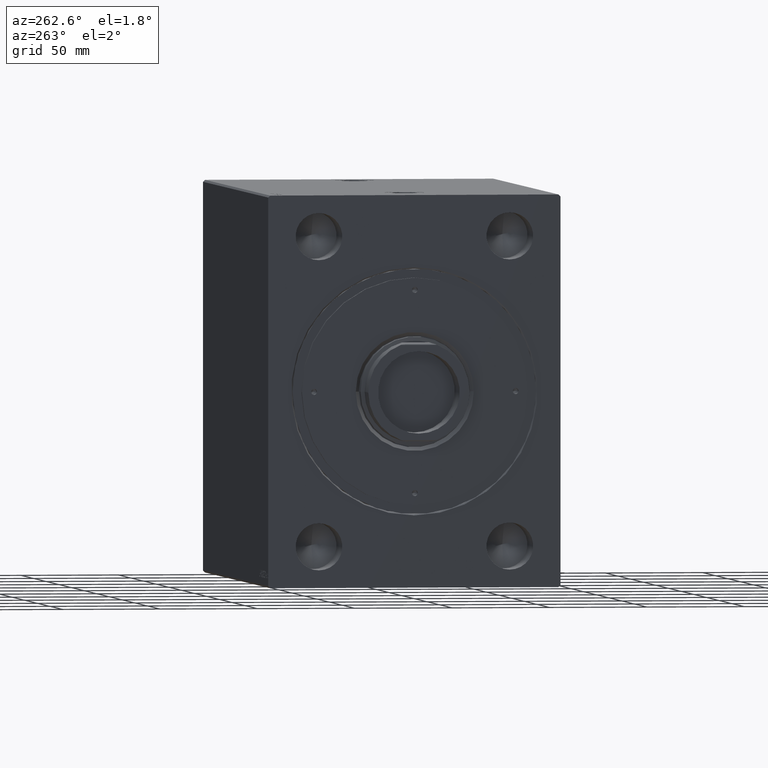
[diagram: clean part render]
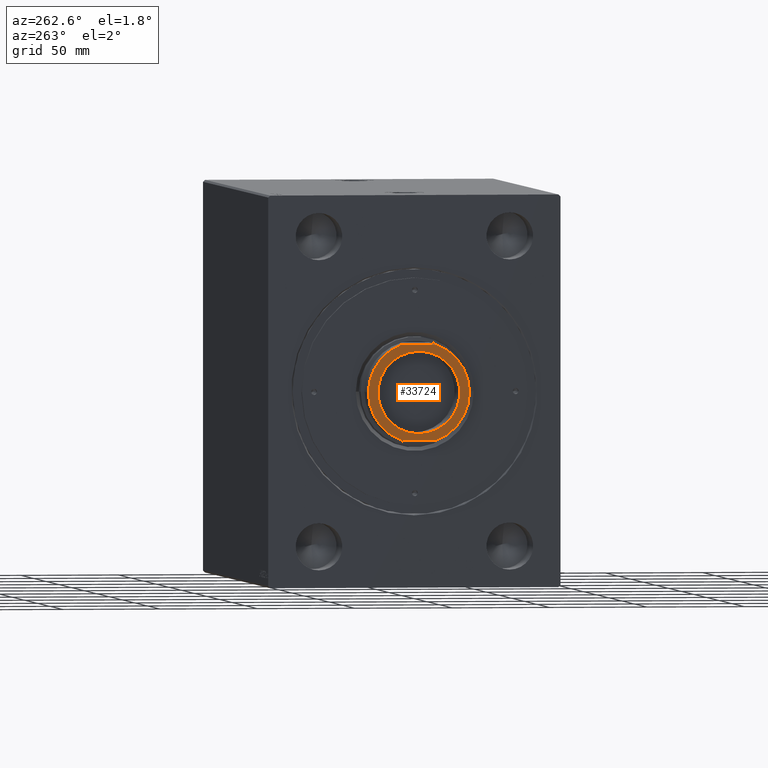
[diagram: same view with one face highlighted and labeled with its STEP entity id]
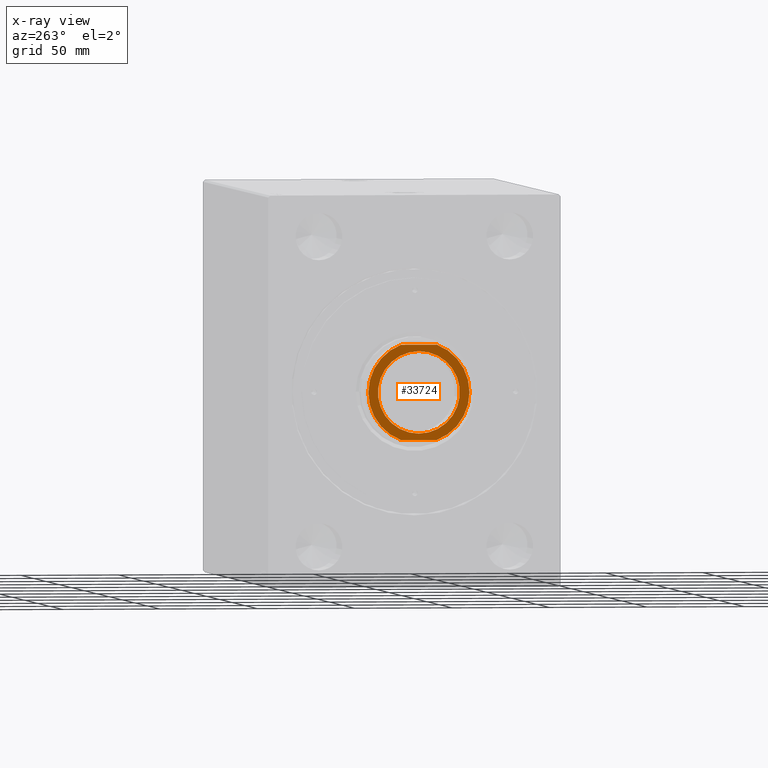
[diagram: x-ray of the same camera — body ghosted, the highlighted face saturated]
A machine part, auxiliary view. The second image highlights one B-rep face of the part: STEP entity #33724.
The next image is the same camera in x-ray: the body ghosted, the highlighted face saturated — about 0% of this face is hidden behind the body in this view.
In plain terms, the highlighted planar face has unit normal (1, -0, -0).
Its self-contained STEP definition (entity closure, byte-faithful):
#2585 = CARTESIAN_POINT ( 'NONE',  ( 24.29000000000001336, -9.160649540289131920, 173.0000000000000000 ) ) ;
#2684 = CIRCLE ( 'NONE', #17719, 25.95999999999999375 ) ;
#3596 = DIRECTION ( 'NONE',  ( 0.000000000000000000, 0.000000000000000000, 1.000000000000000000 ) ) ;
#5474 = DIRECTION ( 'NONE',  ( 0.000000000000000000, 1.655022508399474550E-16, -1.000000000000000000 ) ) ;
#5614 = CIRCLE ( 'NONE', #32165, 25.95999999999999375 ) ;
#5632 = DIRECTION ( 'NONE',  ( 0.000000000000000000, 0.000000000000000000, 1.000000000000000000 ) ) ;
#6082 = CARTESIAN_POINT ( 'NONE',  ( 0.000000000000000000, -2.863188939531091061E-14, 173.0000000000000000 ) ) ;
#6926 = ORIENTED_EDGE ( 'NONE', *, *, #20827, .F. ) ;
#7107 = VERTEX_POINT ( 'NONE', #8261 ) ;
#7177 = DIRECTION ( 'NONE',  ( 0.000000000000000000, 1.000000000000000000, 1.655022508399474550E-16 ) ) ;
#7779 = VERTEX_POINT ( 'NONE', #17161 ) ;
#7846 = CARTESIAN_POINT ( 'NONE',  ( -24.29000000000001336, 9.160649540289073300, 173.0000000000000000 ) ) ;
#8261 = CARTESIAN_POINT ( 'NONE',  ( -21.00000000000000000, -2.606013111710146619E-14, 173.0000000000000000 ) ) ;
#8517 = CARTESIAN_POINT ( 'NONE',  ( 0.000000000000000000, -2.863188939531091061E-14, 173.0000000000000000 ) ) ;
#8729 = DIRECTION ( 'NONE',  ( -0.000000000000000000, -1.655022508399474550E-16, 1.000000000000000000 ) ) ;
#9003 = EDGE_CURVE ( 'NONE', #36217, #25392, #2684, .T. ) ;
#9646 = AXIS2_PLACEMENT_3D ( 'NONE', #27628, #3596, #17071 ) ;
#10375 = EDGE_CURVE ( 'NONE', #21856, #28275, #24497, .T. ) ;
#12203 = FACE_BOUND ( 'NONE', #24003, .T. ) ;
#12397 = CARTESIAN_POINT ( 'NONE',  ( -24.29000000000001336, -9.160649540289131920, 173.0000000000000000 ) ) ;
#12689 = ORIENTED_EDGE ( 'NONE', *, *, #20910, .T. ) ;
#13248 = AXIS2_PLACEMENT_3D ( 'NONE', #8517, #8729, #39744 ) ;
#13468 = AXIS2_PLACEMENT_3D ( 'NONE', #6082, #5632, #19335 ) ;
#14113 = EDGE_LOOP ( 'NONE', ( #38833, #36208, #12689, #29900, #18481 ) ) ;
#15696 = VECTOR ( 'NONE', #38203, 1000.000000000000000 ) ;
#16770 = CARTESIAN_POINT ( 'NONE',  ( 21.00000000000000000, -2.863188939531091061E-14, 173.0000000000000000 ) ) ;
#16872 = CARTESIAN_POINT ( 'NONE',  ( -24.29000000000001336, 25.95999999999996533, 173.0000000000000000 ) ) ;
#17071 = DIRECTION ( 'NONE',  ( 1.000000000000000000, 0.000000000000000000, 0.000000000000000000 ) ) ;
#17161 = CARTESIAN_POINT ( 'NONE',  ( 24.29000000000001336, 9.160649540289073300, 173.0000000000000000 ) ) ;
#17719 = AXIS2_PLACEMENT_3D ( 'NONE', #22255, #42926, #43376 ) ;
#18481 = ORIENTED_EDGE ( 'NONE', *, *, #10375, .T. ) ;
#19335 = DIRECTION ( 'NONE',  ( 1.000000000000000000, 0.000000000000000000, 0.000000000000000000 ) ) ;
#19759 = DIRECTION ( 'NONE',  ( -0.000000000000000000, -1.655022508399474550E-16, 1.000000000000000000 ) ) ;
#20827 = EDGE_CURVE ( 'NONE', #7107, #26960, #32867, .T. ) ;
#20910 = EDGE_CURVE ( 'NONE', #25392, #7779, #24253, .T. ) ;
#21396 = VECTOR ( 'NONE', #7177, 1000.000000000000000 ) ;
#21856 = VERTEX_POINT ( 'NONE', #7846 ) ;
#22255 = CARTESIAN_POINT ( 'NONE',  ( 0.000000000000000000, -2.863188939531091061E-14, 173.0000000000000000 ) ) ;
#22545 = PLANE ( 'NONE',  #29750 ) ;
#24003 = EDGE_LOOP ( 'NONE', ( #42300, #6926 ) ) ;
#24253 = LINE ( 'NONE', #41335, #21396 ) ;
#24497 = LINE ( 'NONE', #16872, #15696 ) ;
#25143 = CARTESIAN_POINT ( 'NONE',  ( 0.000000000000000000, -25.96000000000002217, 173.0000000000000000 ) ) ;
#25392 = VERTEX_POINT ( 'NONE', #2585 ) ;
#26150 = FACE_OUTER_BOUND ( 'NONE', #14113, .T. ) ;
#26960 = VERTEX_POINT ( 'NONE', #16770 ) ;
#27628 = CARTESIAN_POINT ( 'NONE',  ( 0.000000000000000000, -2.863188939531091061E-14, 173.0000000000000000 ) ) ;
#28275 = VERTEX_POINT ( 'NONE', #12397 ) ;
#28432 = EDGE_CURVE ( 'NONE', #28275, #36217, #5614, .T. ) ;
#29733 = CARTESIAN_POINT ( 'NONE',  ( 0.000000000000000000, 25.95999999999996533, 173.0000000000000000 ) ) ;
#29750 = AXIS2_PLACEMENT_3D ( 'NONE', #29733, #5474, #29969 ) ;
#29900 = ORIENTED_EDGE ( 'NONE', *, *, #39794, .T. ) ;
#29969 = DIRECTION ( 'NONE',  ( 0.000000000000000000, 1.000000000000000000, 1.655022508399474550E-16 ) ) ;
#30316 = CARTESIAN_POINT ( 'NONE',  ( 0.000000000000000000, -2.863188939531091061E-14, 173.0000000000000000 ) ) ;
#32165 = AXIS2_PLACEMENT_3D ( 'NONE', #30316, #19759, #36843 ) ;
#32867 = CIRCLE ( 'NONE', #13468, 21.00000000000000000 ) ;
#33724 = ADVANCED_FACE ( 'NONE', ( #12203, #26150 ), #22545, .F. ) ;
#34767 = CIRCLE ( 'NONE', #13248, 25.95999999999999375 ) ;
#36090 = EDGE_CURVE ( 'NONE', #26960, #7107, #39147, .T. ) ;
#36208 = ORIENTED_EDGE ( 'NONE', *, *, #9003, .T. ) ;
#36217 = VERTEX_POINT ( 'NONE', #25143 ) ;
#36843 = DIRECTION ( 'NONE',  ( 0.000000000000000000, -1.000000000000000000, 0.000000000000000000 ) ) ;
#38203 = DIRECTION ( 'NONE',  ( 0.000000000000000000, -1.000000000000000000, -1.655022508399474550E-16 ) ) ;
#38833 = ORIENTED_EDGE ( 'NONE', *, *, #28432, .T. ) ;
#39147 = CIRCLE ( 'NONE', #9646, 21.00000000000000000 ) ;
#39744 = DIRECTION ( 'NONE',  ( 0.000000000000000000, -1.000000000000000000, 0.000000000000000000 ) ) ;
#39794 = EDGE_CURVE ( 'NONE', #7779, #21856, #34767, .T. ) ;
#41335 = CARTESIAN_POINT ( 'NONE',  ( 24.29000000000001336, 25.95999999999996533, 173.0000000000000000 ) ) ;
#42300 = ORIENTED_EDGE ( 'NONE', *, *, #36090, .F. ) ;
#42926 = DIRECTION ( 'NONE',  ( -0.000000000000000000, -1.655022508399474550E-16, 1.000000000000000000 ) ) ;
#43376 = DIRECTION ( 'NONE',  ( 0.000000000000000000, -1.000000000000000000, 0.000000000000000000 ) ) ;